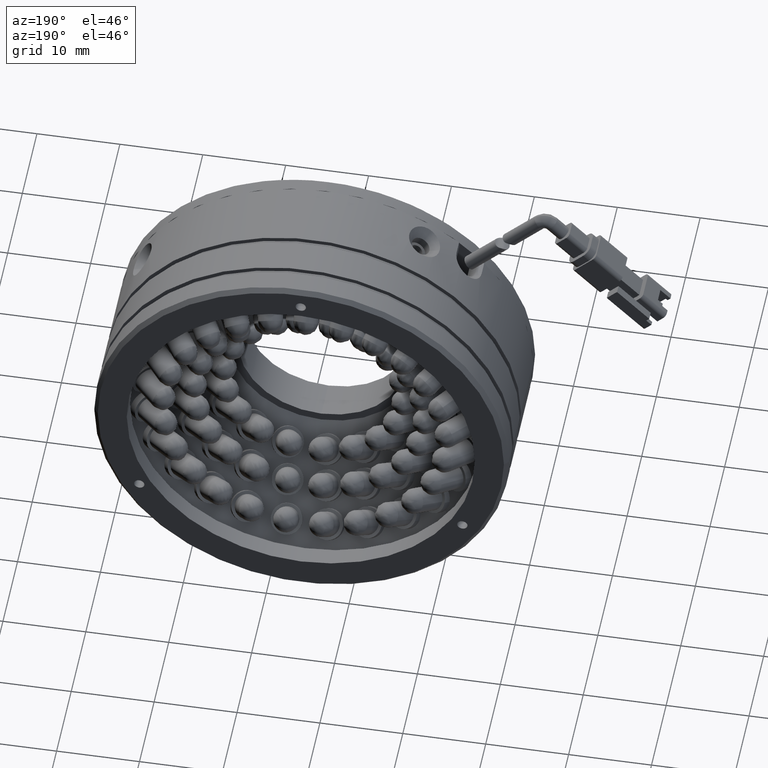
[diagram: clean part render]
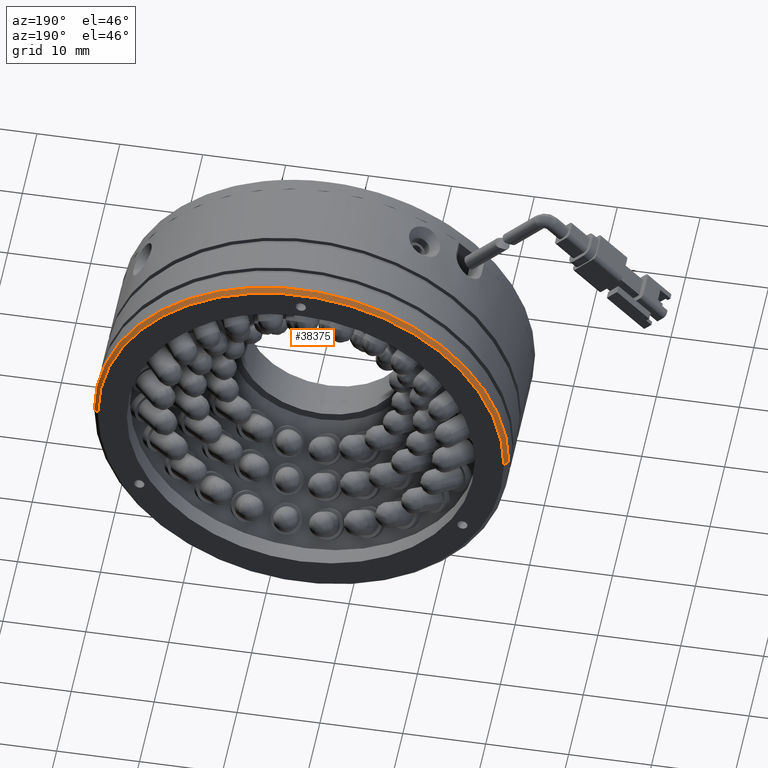
[diagram: same view with one face highlighted and labeled with its STEP entity id]
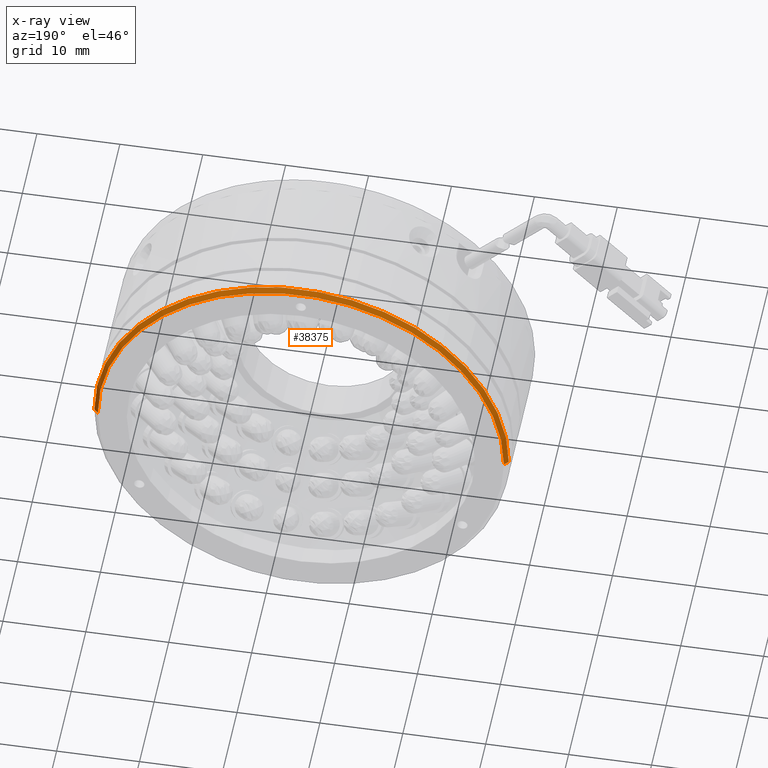
[diagram: x-ray of the same camera — body ghosted, the highlighted face saturated]
A machine part, auxiliary view. The second image highlights one B-rep face of the part: STEP entity #38375.
The next image is the same camera in x-ray: the body ghosted, the highlighted face saturated — about 0% of this face is hidden behind the body in this view.
In plain terms, the highlighted conical surface has half-angle 45 deg.
Its self-contained STEP definition (entity closure, byte-faithful):
#1923 = EDGE_CURVE ( 'NONE', #49933, #38424, #57708, .T. ) ;
#3072 = DIRECTION ( 'NONE',  ( 1.000000000000000000, 0.0000000000000000000, 2.168404344971001200E-019 ) ) ;
#3502 = DIRECTION ( 'NONE',  ( -0.0000000000000000000, 1.000000000000000000, -0.0000000000000000000 ) ) ;
#4337 = CARTESIAN_POINT ( 'NONE',  ( -4.025818638713078100, 18.66823414706072300, 3.557538378468061400E-016 ) ) ;
#4544 = CARTESIAN_POINT ( 'NONE',  ( 20.97418136128692400, 18.66823414706072300, 3.422791846577617100E-015 ) ) ;
#7212 = EDGE_CURVE ( 'NONE', #38424, #39079, #27357, .T. ) ;
#7369 = CARTESIAN_POINT ( 'NONE',  ( -4.025818638713078100, 19.16823414706070800, 3.557538378468061400E-016 ) ) ;
#9856 = DIRECTION ( 'NONE',  ( 0.7071067811865525700, -0.7071067811865425800, 1.533293416683384800E-019 ) ) ;
#10213 = CARTESIAN_POINT ( 'NONE',  ( 20.97418136128692400, 18.66823414706072300, 3.611748487092336600E-016 ) ) ;
#12224 = DIRECTION ( 'NONE',  ( 1.000000000000000000, 0.0000000000000000000, 2.168404344971005000E-019 ) ) ;
#13678 = DIRECTION ( 'NONE',  ( 0.0000000000000000000, -1.000000000000000000, 0.0000000000000000000 ) ) ;
#13711 = EDGE_CURVE ( 'NONE', #19621, #39079, #54044, .T. ) ;
#13883 = DIRECTION ( 'NONE',  ( 1.000000000000000000, 0.0000000000000000000, 2.168404344971001200E-019 ) ) ;
#15220 = CARTESIAN_POINT ( 'NONE',  ( -29.02581863871307600, 18.66823414706072300, 3.411949824852761700E-015 ) ) ;
#16721 = EDGE_LOOP ( 'NONE', ( #44888, #49028, #52779, #56967 ) ) ;
#19621 = VERTEX_POINT ( 'NONE', #58360 ) ;
#23391 = CIRCLE ( 'NONE', #37757, 24.50000000000000700 ) ;
#23827 = CARTESIAN_POINT ( 'NONE',  ( -29.02581863871307600, 18.66823414706072300, 3.503328269843786200E-016 ) ) ;
#25098 = CARTESIAN_POINT ( 'NONE',  ( -28.52581863871308300, 19.16823414706070800, 3.381387864982702900E-015 ) ) ;
#25531 = VECTOR ( 'NONE', #62084, 999.9999999999998900 ) ;
#27357 = CIRCLE ( 'NONE', #32274, 25.00000000000000000 ) ;
#27910 = AXIS2_PLACEMENT_3D ( 'NONE', #47251, #13678, #13883 ) ;
#32274 = AXIS2_PLACEMENT_3D ( 'NONE', #4337, #3502, #3072 ) ;
#37757 = AXIS2_PLACEMENT_3D ( 'NONE', #7369, #41024, #12224 ) ;
#38375 = ADVANCED_FACE ( 'NONE', ( #55263 ), #60441, .T. ) ;
#38424 = VERTEX_POINT ( 'NONE', #23827 ) ;
#39079 = VERTEX_POINT ( 'NONE', #4544 ) ;
#39891 = VECTOR ( 'NONE', #9856, 999.9999999999998900 ) ;
#41024 = DIRECTION ( 'NONE',  ( 0.0000000000000000000, -1.000000000000000000, 0.0000000000000000000 ) ) ;
#44888 = ORIENTED_EDGE ( 'NONE', *, *, #45417, .T. ) ;
#45417 = EDGE_CURVE ( 'NONE', #19621, #49933, #23391, .T. ) ;
#47251 = CARTESIAN_POINT ( 'NONE',  ( -4.025818638713078100, 18.66823414706072300, 3.557538378468061400E-016 ) ) ;
#49028 = ORIENTED_EDGE ( 'NONE', *, *, #1923, .T. ) ;
#49933 = VERTEX_POINT ( 'NONE', #25098 ) ;
#52779 = ORIENTED_EDGE ( 'NONE', *, *, #7212, .T. ) ;
#54044 = LINE ( 'NONE', #10213, #39891 ) ;
#55263 = FACE_OUTER_BOUND ( 'NONE', #16721, .T. ) ;
#56967 = ORIENTED_EDGE ( 'NONE', *, *, #13711, .F. ) ;
#57708 = LINE ( 'NONE', #15220, #25531 ) ;
#58360 = CARTESIAN_POINT ( 'NONE',  ( 20.47418136128693100, 19.16823414706070800, 3.610664284919851100E-016 ) ) ;
#60441 = CONICAL_SURFACE ( 'NONE', #27910, 25.00000000000000000, 0.7853981633974552700 ) ;
#62084 = DIRECTION ( 'NONE',  ( -0.7071067811865525700, -0.7071067811865425800, 8.644227628188160600E-017 ) ) ;